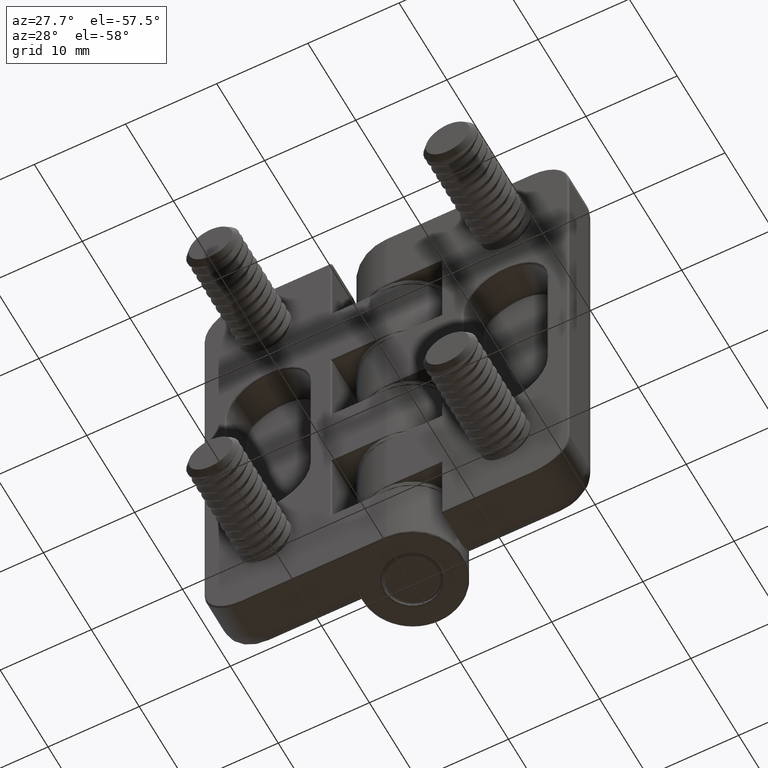
[diagram: clean part render]
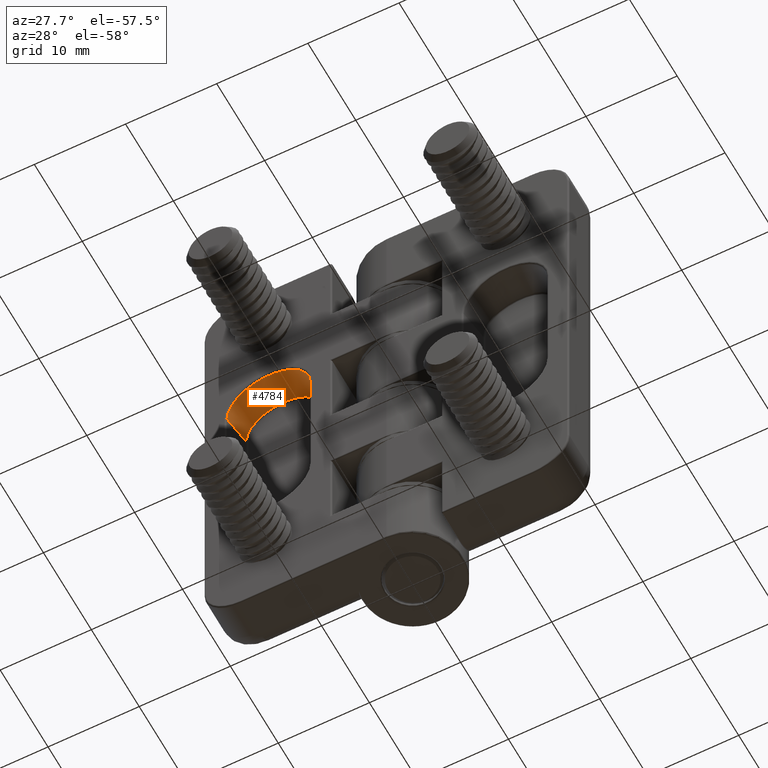
[diagram: same view with one face highlighted and labeled with its STEP entity id]
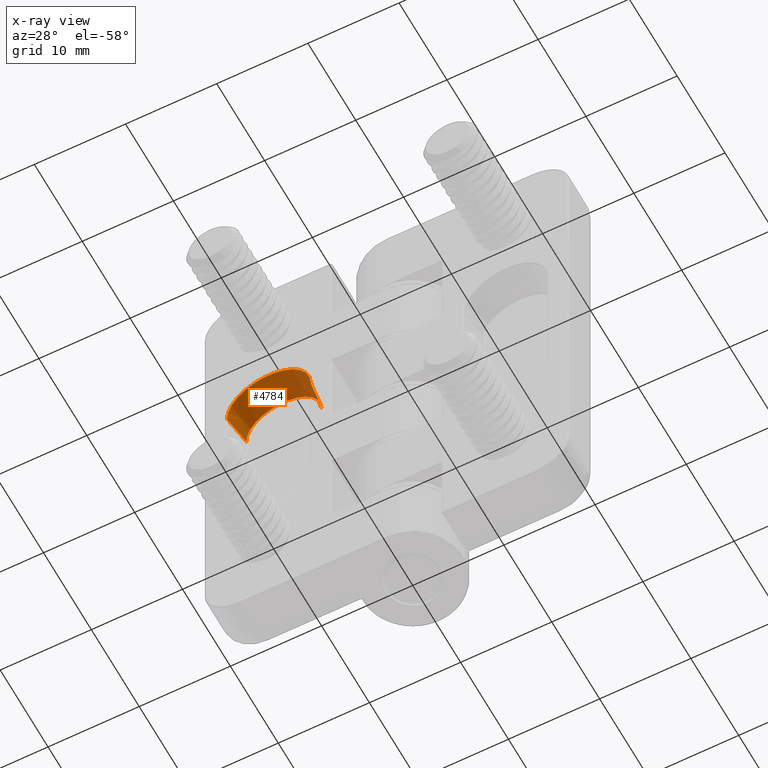
[diagram: x-ray of the same camera — body ghosted, the highlighted face saturated]
A machine part, auxiliary view. The second image highlights one B-rep face of the part: STEP entity #4784.
The next image is the same camera in x-ray: the body ghosted, the highlighted face saturated — about 0% of this face is hidden behind the body in this view.
In plain terms, the highlighted conical surface has half-angle 8.13 deg.
Its self-contained STEP definition (entity closure, byte-faithful):
#186=CONICAL_SURFACE('',#5168,4.6,0.141897054604165);
#263=LINE('',#28040,#471);
#268=LINE('',#28066,#476);
#471=VECTOR('',#5912,3.18861574525471);
#476=VECTOR('',#5947,3.18861574525471);
#842=FACE_OUTER_BOUND('',#1134,.T.);
#1134=EDGE_LOOP('',(#3896,#3897,#3898,#3899));
#1433=CIRCLE('',#5141,4.12453081839322);
#1441=CIRCLE('',#5156,4.57546918160678);
#2130=VERTEX_POINT('',#28021);
#2132=VERTEX_POINT('',#28027);
#2135=VERTEX_POINT('',#28038);
#2139=VERTEX_POINT('',#28053);
#2741=EDGE_CURVE('',#2130,#2132,#1433,.T.);
#2746=EDGE_CURVE('',#2135,#2130,#263,.T.);
#2757=EDGE_CURVE('',#2139,#2135,#1441,.T.);
#2759=EDGE_CURVE('',#2139,#2132,#268,.T.);
#3896=ORIENTED_EDGE('',*,*,#2741,.F.);
#3897=ORIENTED_EDGE('',*,*,#2746,.F.);
#3898=ORIENTED_EDGE('',*,*,#2757,.F.);
#3899=ORIENTED_EDGE('',*,*,#2759,.T.);
#4784=ADVANCED_FACE('',(#842),#186,.F.);
#5141=AXIS2_PLACEMENT_3D('',#28031,#5902,#5903);
#5156=AXIS2_PLACEMENT_3D('',#28062,#5940,#5941);
#5168=AXIS2_PLACEMENT_3D('',#28108,#5980,#5981);
#5902=DIRECTION('center_axis',(6.72938979916305E-16,-1.,0.));
#5903=DIRECTION('ref_axis',(0.,0.,-1.));
#5912=DIRECTION('',(0.141421356237308,0.989949493661167,0.));
#5940=DIRECTION('center_axis',(-4.85293630252484E-16,1.,4.21687917729221E-81));
#5941=DIRECTION('ref_axis',(0.,0.,-1.));
#5947=DIRECTION('',(-0.14142135623731,0.989949493661167,0.));
#5980=DIRECTION('center_axis',(1.26882631385732E-15,-1.,0.));
#5981=DIRECTION('ref_axis',(-1.,-1.26882631385732E-15,0.));
#28021=CARTESIAN_POINT('',(8.87546918160678,-2.17171572875254,-34.4));
#28027=CARTESIAN_POINT('',(17.1245308183932,-2.17171572875254,-34.4));
#28031=CARTESIAN_POINT('Origin',(13.,-2.17171572875254,-34.4));
#28038=CARTESIAN_POINT('',(8.42453081839322,-5.32828427124746,-34.4));
#28040=CARTESIAN_POINT('',(8.4,-5.50000000000001,-34.4));
#28053=CARTESIAN_POINT('',(17.5754691816068,-5.32828427124746,-34.4));
#28062=CARTESIAN_POINT('Origin',(13.,-5.32828427124745,-34.4));
#28066=CARTESIAN_POINT('',(17.6,-5.5,-34.4));
#28108=CARTESIAN_POINT('Origin',(13.,-5.5,-34.4));